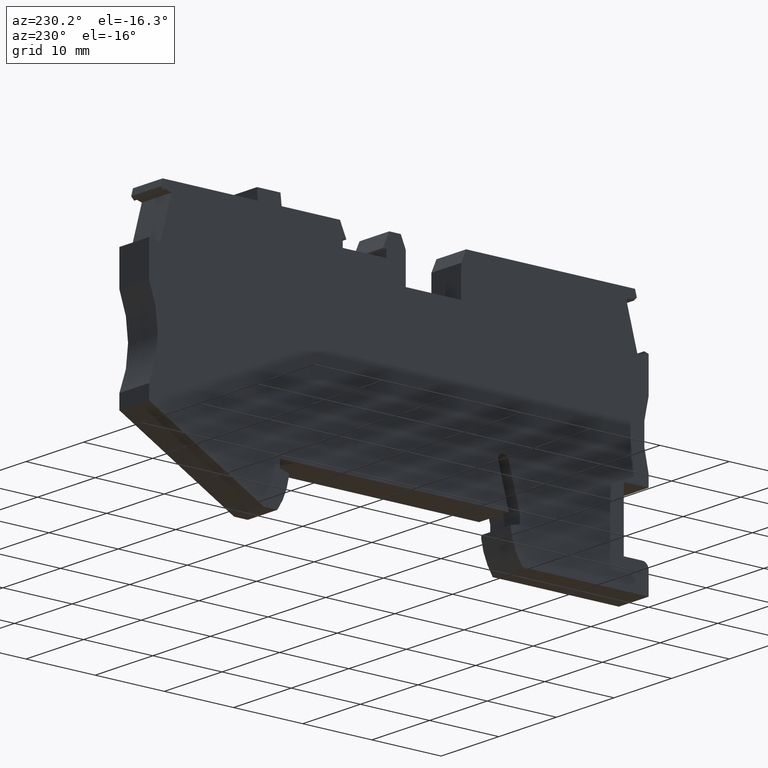
[diagram: clean part render]
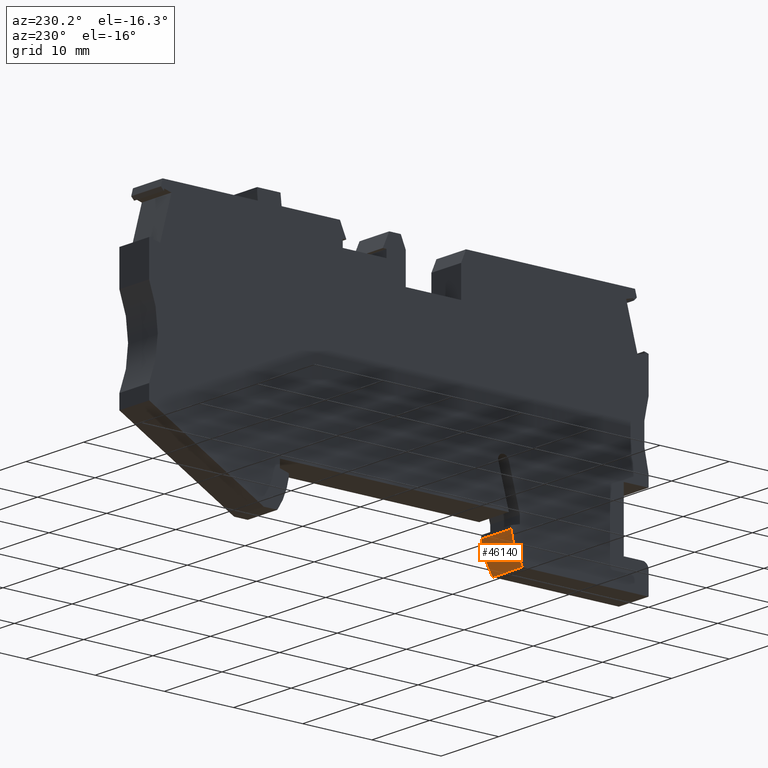
[diagram: same view with one face highlighted and labeled with its STEP entity id]
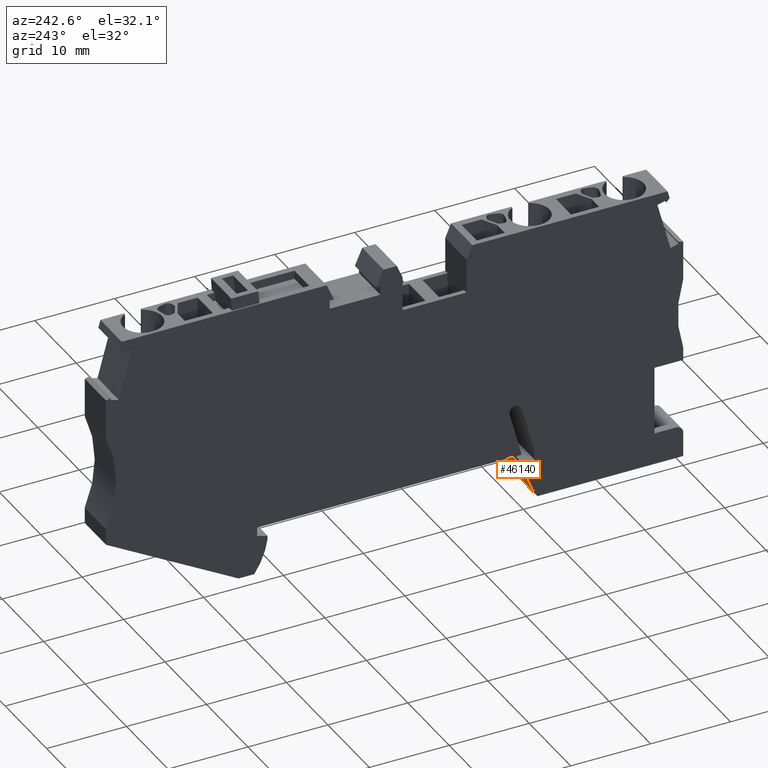
[diagram: same view with one face highlighted and labeled with its STEP entity id]
A machine part, auxiliary view. The second image highlights one B-rep face of the part: STEP entity #46140.
A second angle (auxiliary view) of the same face is appended — the face is thin or edge-on in the first view.
In plain terms, the highlighted cylindrical surface (partial cylindrical patch) has radius 9.5 mm, axis along (1, -0, 0).
Its self-contained STEP definition (entity closure, byte-faithful):
#8280=CARTESIAN_POINT('',(-4.12677643145729,-44.4000000000013,53.67));
#8290=DIRECTION('',(0.,0.,1.));
#8300=VECTOR('',#8290,1.);
#8310=LINE('',#8280,#8300);
#8320=CARTESIAN_POINT('',(-4.12677643145729,-44.4000000000013,
48.5199999999973));
#8330=VERTEX_POINT('',#8320);
#8340=CARTESIAN_POINT('',(-4.12677643145729,-44.4000000000013,
53.6699999999767));
#8350=VERTEX_POINT('',#8340);
#8360=EDGE_CURVE('',#8330,#8350,#8310,.T.);
#18560=CARTESIAN_POINT('',(-2.46783277832461,-40.3000000000022,
53.6699999999767));
#18570=VERTEX_POINT('',#18560);
#18600=CARTESIAN_POINT('',(-11.861805457701,-38.8846282117038,
53.6699999999767));
#18610=DIRECTION('',(0.,0.,1.));
#18620=DIRECTION('',(1.,0.,0.));
#18630=AXIS2_PLACEMENT_3D('',#18600,#18610,#18620);
#18640=CIRCLE('',#18630,9.49999999999899);
#18650=EDGE_CURVE('',#8350,#18570,#18640,.T.);
#32090=CARTESIAN_POINT('',(-2.46783277832461,-40.3000000000022,
48.5199999999973));
#32100=VERTEX_POINT('',#32090);
#32130=CARTESIAN_POINT('',(-2.46783277832461,-40.3000000000021,53.67));
#32140=DIRECTION('',(0.,0.,1.));
#32150=VECTOR('',#32140,1.);
#32160=LINE('',#32130,#32150);
#32170=EDGE_CURVE('',#32100,#18570,#32160,.T.);
#45970=CARTESIAN_POINT('',(-11.861805457701,-38.8846282117038,53.67));
#45980=DIRECTION('',(0.,0.,1.));
#45990=DIRECTION('',(1.,0.,0.));
#46000=AXIS2_PLACEMENT_3D('',#45970,#45980,#45990);
#46010=CYLINDRICAL_SURFACE('',#46000,9.49999999999899);
#46020=ORIENTED_EDGE('',*,*,#18650,.F.);
#46030=ORIENTED_EDGE('',*,*,#32170,.T.);
#46040=CARTESIAN_POINT('',(-11.861805457701,-38.8846282117038,
48.5199999999973));
#46050=DIRECTION('',(0.,0.,1.));
#46060=DIRECTION('',(1.,0.,0.));
#46070=AXIS2_PLACEMENT_3D('',#46040,#46050,#46060);
#46080=CIRCLE('',#46070,9.49999999999899);
#46090=EDGE_CURVE('',#8330,#32100,#46080,.T.);
#46100=ORIENTED_EDGE('',*,*,#46090,.T.);
#46110=ORIENTED_EDGE('',*,*,#8360,.F.);
#46120=EDGE_LOOP('',(#46110,#46100,#46030,#46020));
#46130=FACE_OUTER_BOUND('',#46120,.T.);
#46140=ADVANCED_FACE('',(#46130),#46010,.T.);